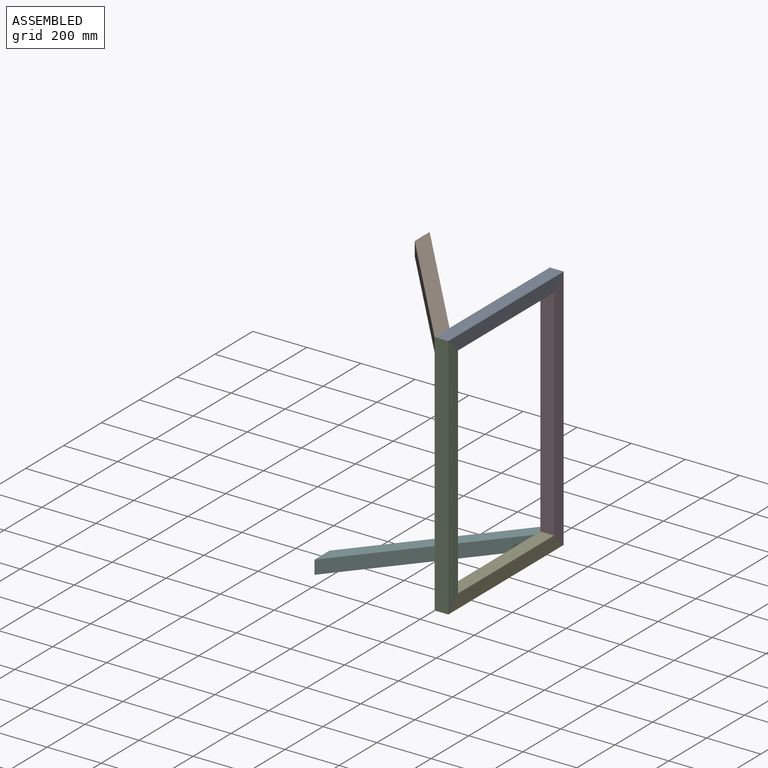
[diagram: assembled view]
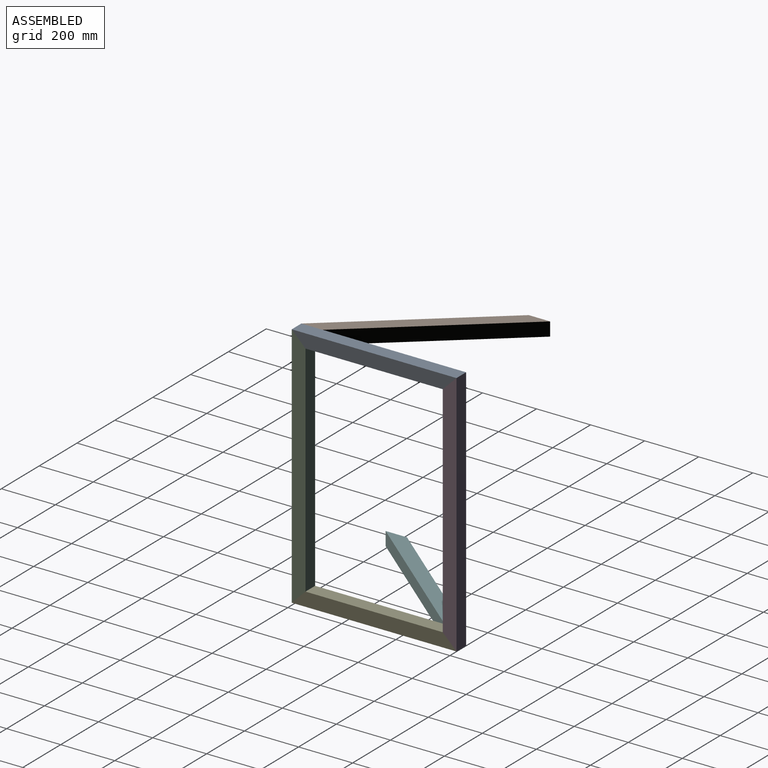
[diagram: assembled view, second angle]
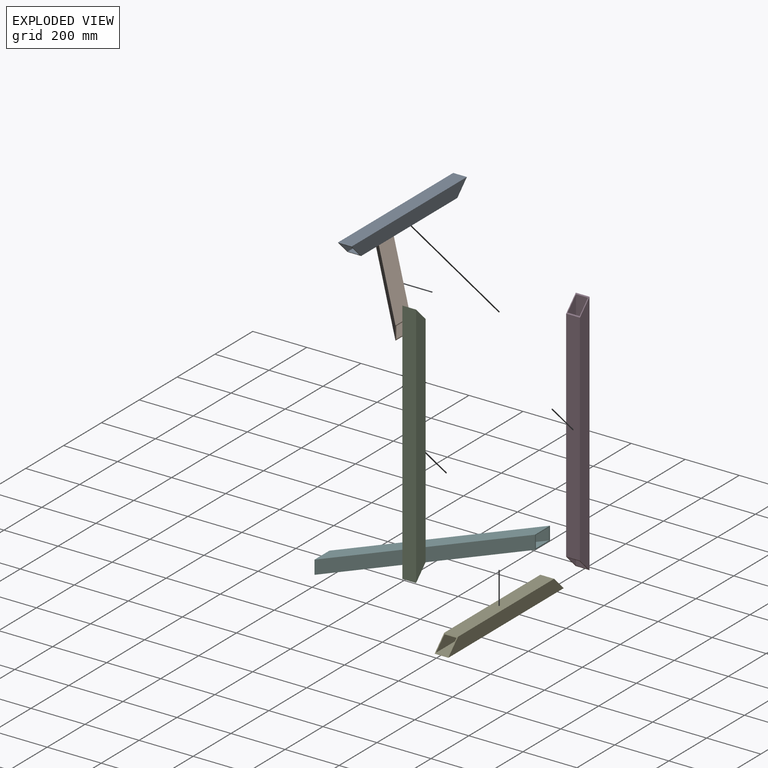
[diagram: exploded view]
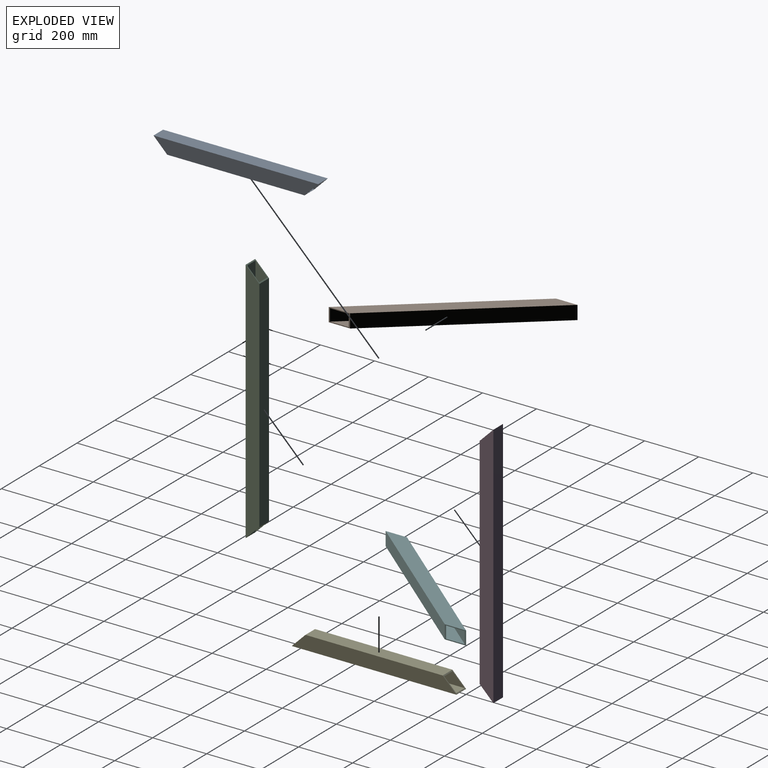
[diagram: exploded view, second angle]
ASSEMBLY  parts=6 mates=5
PART A: 10 faces, bbox 50.8x609.6x50.8 mm
  f0: plane 609.6x50.8mm, normal (0,0,1), area 28387mm2, adj f1,f3,f8,f9
  f1: plane 508x50.8mm, normal (-1,0,0), area 25806.4mm2, adj f0,f2,f8,f9
  f2: plane 609.6x50.8mm, normal (0,0,-1), area 28387mm2, adj f1,f3,f8,f9
  f3: plane 609.6x50.8mm, normal (1,0,0), area 30967.7mm2, adj f0,f2,f8,f9
  f4: plane 603.25x44.45mm, normal (0,0,-1), area 24838.7mm2, adj f5,f7,f8,f9
  f5: plane 514.35x44.45mm, normal (1,0,0), area 22862.9mm2, adj f4,f6,f8,f9
  f6: plane 603.25x44.45mm, normal (0,0,1), area 24838.7mm2, adj f5,f7,f8,f9
  f7: plane 603.25x44.45mm, normal (-1,0,0), area 26814.5mm2, adj f4,f6,f8,f9
  f8: plane 50.8x50.8mm, normal (-0.71,0.71,0), area 855.4mm2, adj f0,f1,f2,f3,f4,f5,f6,f7
  f9: plane 50.8x50.8mm, normal (-0.71,-0.71,0), area 855.4mm2, adj f0,f1,f2,f3,f4,f5,f6,f7
PART B: 10 faces, bbox 50.8x752.5x50.8 mm
  f0: plane 752.48x50.8mm, normal (0,0,1), area 35150.2mm2, adj f1,f3,f8,f9
  f1: plane 691.93x50.8mm, normal (-1,0,0), area 35150.2mm2, adj f0,f2,f8,f9
  f2: plane 752.48x50.8mm, normal (0,0,-1), area 35150.2mm2, adj f1,f3,f8,f9
  f3: plane 691.93x50.8mm, normal (1,0,0), area 35150.2mm2, adj f0,f2,f8,f9
  f4: plane 744.91x44.45mm, normal (0,0,-1), area 30756.5mm2, adj f5,f7,f8,f9
  f5: plane 691.93x44.45mm, normal (1,0,0), area 30756.5mm2, adj f4,f6,f8,f9
  f6: plane 744.91x44.45mm, normal (0,0,1), area 30756.5mm2, adj f5,f7,f8,f9
  f7: plane 691.93x44.45mm, normal (-1,0,0), area 30756.5mm2, adj f4,f6,f8,f9
  f8: plane 60.54x50.8mm, normal (-0.77,-0.64,0), area 941mm2, adj f0,f1,f2,f3,f4,f5,f6,f7
  f9: plane 60.54x50.8mm, normal (0.77,0.64,0), area 941mm2, adj f0,f1,f2,f3,f4,f5,f6,f7
PART C: 10 faces, bbox 50.8x914.4x50.8 mm
  f0: plane 914.4x50.8mm, normal (0,0,1), area 43870.9mm2, adj f1,f3,f8,f9
  f1: plane 812.8x50.8mm, normal (-1,0,0), area 41290.2mm2, adj f0,f2,f8,f9
  f2: plane 914.4x50.8mm, normal (0,0,-1), area 43870.9mm2, adj f1,f3,f8,f9
  f3: plane 914.4x50.8mm, normal (1,0,0), area 46451.5mm2, adj f0,f2,f8,f9
  f4: plane 908.05x44.45mm, normal (0,0,-1), area 38387mm2, adj f5,f7,f8,f9
  f5: plane 819.15x44.45mm, normal (1,0,0), area 36411.2mm2, adj f4,f6,f8,f9
  f6: plane 908.05x44.45mm, normal (0,0,1), area 38387mm2, adj f5,f7,f8,f9
  f7: plane 908.05x44.45mm, normal (-1,0,0), area 40362.8mm2, adj f4,f6,f8,f9
  f8: plane 50.8x50.8mm, normal (-0.71,0.71,0), area 855.4mm2, adj f0,f1,f2,f3,f4,f5,f6,f7
  f9: plane 50.8x50.8mm, normal (-0.71,-0.71,0), area 855.4mm2, adj f0,f1,f2,f3,f4,f5,f6,f7
PART D: same geometry as C
PART E: same geometry as A
PART F: same geometry as B
PLACE A rot(axis=(0,-1,0),90deg) t=(25.4,-304.8,889)mm
PLACE B rot(axis=(-0.34,0.94,0),180deg) t=(-222.38,-305.06,889)mm
PLACE C rot(axis=(-0.58,0.58,-0.58),120deg) t=(25.4,-584.2,457.2)mm
PLACE D rot(axis=(0.58,0.58,0.58),120deg) t=(25.4,-25.4,457.2)mm
PLACE E rot(axis=(0,1,0),90deg) t=(25.4,-304.8,25.4)mm
PLACE F rot(axis=(0,0,-1),40deg) t=(-222.38,-304.54,25.4)mm
MATE fastened E.f9 <-> C.f8  axis (0,-0.71,0.71) through (25.4,-584.2,25.4)mm
MATE fastened F.f9 <-> D.f2  axis (1,0,0) through (0,0,0)mm
MATE fastened E.f8 <-> D.f9  axis (0,0.71,0.71) through (25.4,-25.4,25.4)mm
MATE fastened A.f8 <-> D.f8  axis (0,0.71,-0.71) through (25.4,-25.4,889)mm
MATE fastened C.f2 <-> B.f8  axis (-1,0,0) through (0,-609.6,914.4)mm
